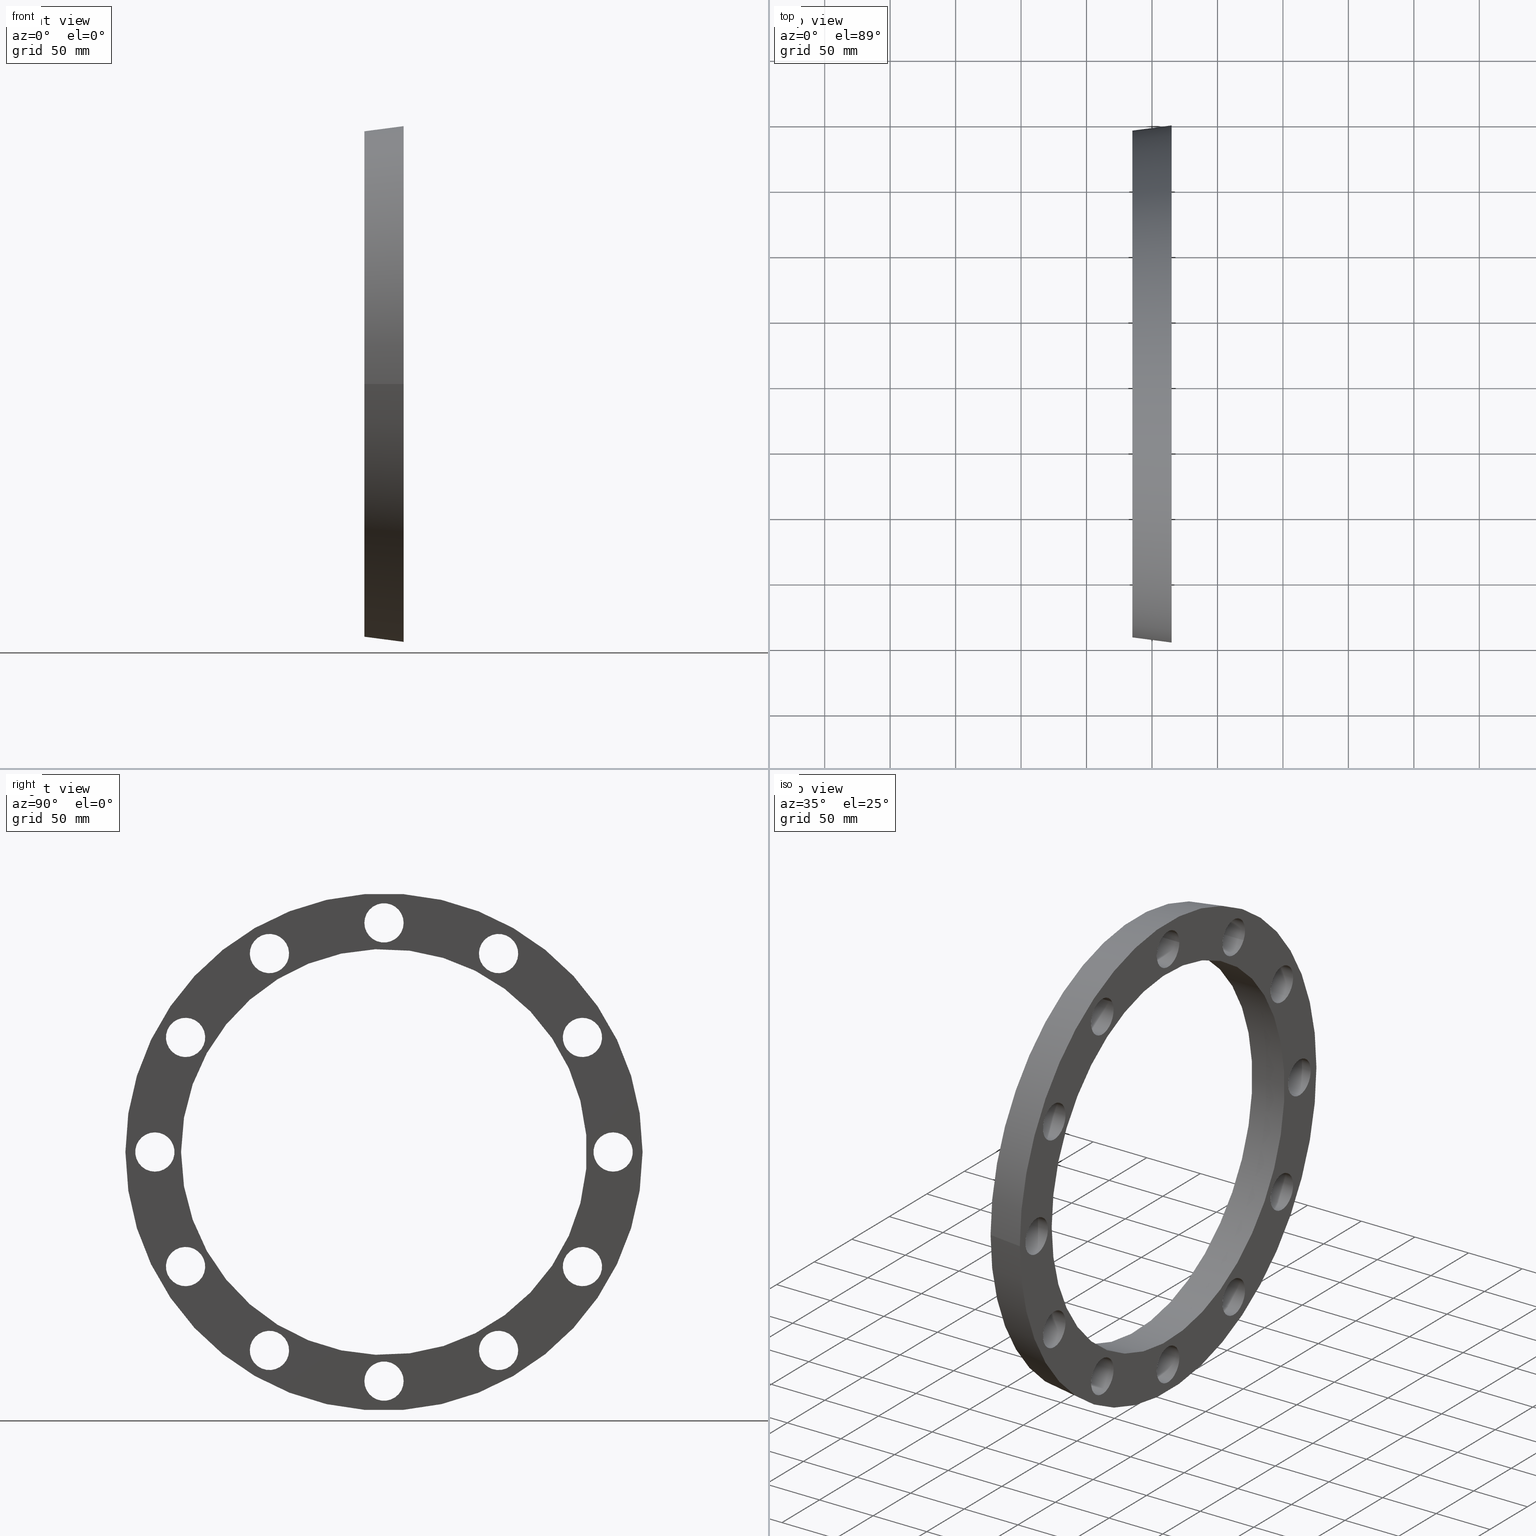
[diagram: canonical four-view strip — front | top / right | iso, engineering-drawing reading convention]
A machine part, canonical four-view strip (front | top / right | iso — engineering-drawing reading convention). The complete STEP part file that produces these views, byte-faithful:
ISO-10303-21;
HEADER;
/* Generated by software containing ST-Developer
 * from STEP Tools, Inc. (www.steptools.com) 
 */

FILE_DESCRIPTION(
/* description */ ('PLASSON BACKING FLANGE PVC 280'),
/* implementation_level */ '2;1');

FILE_NAME(
/* name */ 
'C:\\Dropbox\\KIMPROJECTS-Inventor\\99-16-3568-Processing\\PVC Catalog
 2017\\059000\\(_AS)059000280.ipt.stp',
/* time_stamp */ '2017-12-07T16:06:23+02:00',
/* author */ ('KIM'),
/* organization */ (''),
/* preprocessor_version */ 'ST-DEVELOPER v15.6',
/* originating_system */ 'Autodesk Inventor 2015',
/* authorisation */ '');

FILE_SCHEMA (('AUTOMOTIVE_DESIGN { 1 0 10303 214 3 1 1 }'));
ENDSEC;

DATA;
#10=MECHANICAL_DESIGN_GEOMETRIC_PRESENTATION_REPRESENTATION('',(#13),#511);
#11=SHAPE_REPRESENTATION_RELATIONSHIP('SRR','None',#520,#12);
#12=ADVANCED_BREP_SHAPE_REPRESENTATION($,(#14),#510);
#13=STYLED_ITEM('',(#529),#14);
#14=MANIFOLD_SOLID_BREP('Solid1',#299);
#15=CONICAL_SURFACE('',#340,195.525,7.50079799578686);
#16=PLANE('',#337);
#17=PLANE('',#342);
#18=FACE_BOUND('',#75,.T.);
#19=FACE_BOUND('',#77,.T.);
#20=FACE_BOUND('',#79,.T.);
#21=FACE_BOUND('',#81,.T.);
#22=FACE_BOUND('',#83,.T.);
#23=FACE_BOUND('',#85,.T.);
#24=FACE_BOUND('',#87,.T.);
#25=FACE_BOUND('',#89,.T.);
#26=FACE_BOUND('',#91,.T.);
#27=FACE_BOUND('',#93,.T.);
#28=FACE_BOUND('',#95,.T.);
#29=FACE_BOUND('',#97,.T.);
#30=FACE_BOUND('',#99,.T.);
#31=FACE_BOUND('',#100,.T.);
#32=FACE_BOUND('',#101,.T.);
#33=FACE_BOUND('',#102,.T.);
#34=FACE_BOUND('',#103,.T.);
#35=FACE_BOUND('',#104,.T.);
#36=FACE_BOUND('',#105,.T.);
#37=FACE_BOUND('',#106,.T.);
#38=FACE_BOUND('',#107,.T.);
#39=FACE_BOUND('',#108,.T.);
#40=FACE_BOUND('',#109,.T.);
#41=FACE_BOUND('',#110,.T.);
#42=FACE_BOUND('',#111,.T.);
#43=FACE_BOUND('',#113,.T.);
#44=FACE_BOUND('',#115,.T.);
#45=FACE_BOUND('',#116,.T.);
#46=FACE_BOUND('',#117,.T.);
#47=FACE_BOUND('',#118,.T.);
#48=FACE_BOUND('',#119,.T.);
#49=FACE_BOUND('',#120,.T.);
#50=FACE_BOUND('',#121,.T.);
#51=FACE_BOUND('',#122,.T.);
#52=FACE_BOUND('',#123,.T.);
#53=FACE_BOUND('',#124,.T.);
#54=FACE_BOUND('',#125,.T.);
#55=FACE_BOUND('',#126,.T.);
#56=FACE_BOUND('',#127,.T.);
#57=FACE_BOUND('',#129,.T.);
#58=FACE_OUTER_BOUND('',#74,.T.);
#59=FACE_OUTER_BOUND('',#76,.T.);
#60=FACE_OUTER_BOUND('',#78,.T.);
#61=FACE_OUTER_BOUND('',#80,.T.);
#62=FACE_OUTER_BOUND('',#82,.T.);
#63=FACE_OUTER_BOUND('',#84,.T.);
#64=FACE_OUTER_BOUND('',#86,.T.);
#65=FACE_OUTER_BOUND('',#88,.T.);
#66=FACE_OUTER_BOUND('',#90,.T.);
#67=FACE_OUTER_BOUND('',#92,.T.);
#68=FACE_OUTER_BOUND('',#94,.T.);
#69=FACE_OUTER_BOUND('',#96,.T.);
#70=FACE_OUTER_BOUND('',#98,.T.);
#71=FACE_OUTER_BOUND('',#112,.T.);
#72=FACE_OUTER_BOUND('',#114,.T.);
#73=FACE_OUTER_BOUND('',#128,.T.);
#74=EDGE_LOOP('',(#214));
#75=EDGE_LOOP('',(#215));
#76=EDGE_LOOP('',(#216));
#77=EDGE_LOOP('',(#217));
#78=EDGE_LOOP('',(#218));
#79=EDGE_LOOP('',(#219));
#80=EDGE_LOOP('',(#220));
#81=EDGE_LOOP('',(#221));
#82=EDGE_LOOP('',(#222));
#83=EDGE_LOOP('',(#223));
#84=EDGE_LOOP('',(#224));
#85=EDGE_LOOP('',(#225));
#86=EDGE_LOOP('',(#226));
#87=EDGE_LOOP('',(#227));
#88=EDGE_LOOP('',(#228));
#89=EDGE_LOOP('',(#229));
#90=EDGE_LOOP('',(#230));
#91=EDGE_LOOP('',(#231));
#92=EDGE_LOOP('',(#232));
#93=EDGE_LOOP('',(#233));
#94=EDGE_LOOP('',(#234));
#95=EDGE_LOOP('',(#235));
#96=EDGE_LOOP('',(#236));
#97=EDGE_LOOP('',(#237));
#98=EDGE_LOOP('',(#238));
#99=EDGE_LOOP('',(#239));
#100=EDGE_LOOP('',(#240));
#101=EDGE_LOOP('',(#241));
#102=EDGE_LOOP('',(#242));
#103=EDGE_LOOP('',(#243));
#104=EDGE_LOOP('',(#244));
#105=EDGE_LOOP('',(#245));
#106=EDGE_LOOP('',(#246));
#107=EDGE_LOOP('',(#247));
#108=EDGE_LOOP('',(#248));
#109=EDGE_LOOP('',(#249));
#110=EDGE_LOOP('',(#250));
#111=EDGE_LOOP('',(#251));
#112=EDGE_LOOP('',(#252));
#113=EDGE_LOOP('',(#253));
#114=EDGE_LOOP('',(#254));
#115=EDGE_LOOP('',(#255));
#116=EDGE_LOOP('',(#256));
#117=EDGE_LOOP('',(#257));
#118=EDGE_LOOP('',(#258));
#119=EDGE_LOOP('',(#259));
#120=EDGE_LOOP('',(#260));
#121=EDGE_LOOP('',(#261));
#122=EDGE_LOOP('',(#262));
#123=EDGE_LOOP('',(#263));
#124=EDGE_LOOP('',(#264));
#125=EDGE_LOOP('',(#265));
#126=EDGE_LOOP('',(#266));
#127=EDGE_LOOP('',(#267));
#128=EDGE_LOOP('',(#268));
#129=EDGE_LOOP('',(#269));
#130=CIRCLE('',#302,15.);
#131=CIRCLE('',#303,15.);
#132=CIRCLE('',#305,15.);
#133=CIRCLE('',#306,15.);
#134=CIRCLE('',#308,15.);
#135=CIRCLE('',#309,15.);
#136=CIRCLE('',#311,15.);
#137=CIRCLE('',#312,15.);
#138=CIRCLE('',#314,15.);
#139=CIRCLE('',#315,15.);
#140=CIRCLE('',#317,15.);
#141=CIRCLE('',#318,15.);
#142=CIRCLE('',#320,15.);
#143=CIRCLE('',#321,15.);
#144=CIRCLE('',#323,15.);
#145=CIRCLE('',#324,15.);
#146=CIRCLE('',#326,15.);
#147=CIRCLE('',#327,15.);
#148=CIRCLE('',#329,15.);
#149=CIRCLE('',#330,15.);
#150=CIRCLE('',#332,15.);
#151=CIRCLE('',#333,15.);
#152=CIRCLE('',#335,15.);
#153=CIRCLE('',#336,15.);
#154=CIRCLE('',#338,197.5);
#155=CIRCLE('',#339,155.);
#156=CIRCLE('',#341,193.55);
#157=CIRCLE('',#343,155.);
#158=VERTEX_POINT('',#437);
#159=VERTEX_POINT('',#439);
#160=VERTEX_POINT('',#442);
#161=VERTEX_POINT('',#444);
#162=VERTEX_POINT('',#447);
#163=VERTEX_POINT('',#449);
#164=VERTEX_POINT('',#452);
#165=VERTEX_POINT('',#454);
#166=VERTEX_POINT('',#457);
#167=VERTEX_POINT('',#459);
#168=VERTEX_POINT('',#462);
#169=VERTEX_POINT('',#464);
#170=VERTEX_POINT('',#467);
#171=VERTEX_POINT('',#469);
#172=VERTEX_POINT('',#472);
#173=VERTEX_POINT('',#474);
#174=VERTEX_POINT('',#477);
#175=VERTEX_POINT('',#479);
#176=VERTEX_POINT('',#482);
#177=VERTEX_POINT('',#484);
#178=VERTEX_POINT('',#487);
#179=VERTEX_POINT('',#489);
#180=VERTEX_POINT('',#492);
#181=VERTEX_POINT('',#494);
#182=VERTEX_POINT('',#497);
#183=VERTEX_POINT('',#499);
#184=VERTEX_POINT('',#502);
#185=VERTEX_POINT('',#505);
#186=EDGE_CURVE('',#158,#158,#130,.T.);
#187=EDGE_CURVE('',#159,#159,#131,.T.);
#188=EDGE_CURVE('',#160,#160,#132,.T.);
#189=EDGE_CURVE('',#161,#161,#133,.T.);
#190=EDGE_CURVE('',#162,#162,#134,.T.);
#191=EDGE_CURVE('',#163,#163,#135,.T.);
#192=EDGE_CURVE('',#164,#164,#136,.T.);
#193=EDGE_CURVE('',#165,#165,#137,.T.);
#194=EDGE_CURVE('',#166,#166,#138,.T.);
#195=EDGE_CURVE('',#167,#167,#139,.T.);
#196=EDGE_CURVE('',#168,#168,#140,.T.);
#197=EDGE_CURVE('',#169,#169,#141,.T.);
#198=EDGE_CURVE('',#170,#170,#142,.T.);
#199=EDGE_CURVE('',#171,#171,#143,.T.);
#200=EDGE_CURVE('',#172,#172,#144,.T.);
#201=EDGE_CURVE('',#173,#173,#145,.T.);
#202=EDGE_CURVE('',#174,#174,#146,.T.);
#203=EDGE_CURVE('',#175,#175,#147,.T.);
#204=EDGE_CURVE('',#176,#176,#148,.T.);
#205=EDGE_CURVE('',#177,#177,#149,.T.);
#206=EDGE_CURVE('',#178,#178,#150,.T.);
#207=EDGE_CURVE('',#179,#179,#151,.T.);
#208=EDGE_CURVE('',#180,#180,#152,.T.);
#209=EDGE_CURVE('',#181,#181,#153,.T.);
#210=EDGE_CURVE('',#182,#182,#154,.T.);
#211=EDGE_CURVE('',#183,#183,#155,.T.);
#212=EDGE_CURVE('',#184,#184,#156,.T.);
#213=EDGE_CURVE('',#185,#185,#157,.T.);
#214=ORIENTED_EDGE('',*,*,#186,.F.);
#215=ORIENTED_EDGE('',*,*,#187,.F.);
#216=ORIENTED_EDGE('',*,*,#188,.F.);
#217=ORIENTED_EDGE('',*,*,#189,.F.);
#218=ORIENTED_EDGE('',*,*,#190,.F.);
#219=ORIENTED_EDGE('',*,*,#191,.F.);
#220=ORIENTED_EDGE('',*,*,#192,.F.);
#221=ORIENTED_EDGE('',*,*,#193,.F.);
#222=ORIENTED_EDGE('',*,*,#194,.F.);
#223=ORIENTED_EDGE('',*,*,#195,.F.);
#224=ORIENTED_EDGE('',*,*,#196,.F.);
#225=ORIENTED_EDGE('',*,*,#197,.F.);
#226=ORIENTED_EDGE('',*,*,#198,.F.);
#227=ORIENTED_EDGE('',*,*,#199,.F.);
#228=ORIENTED_EDGE('',*,*,#200,.F.);
#229=ORIENTED_EDGE('',*,*,#201,.F.);
#230=ORIENTED_EDGE('',*,*,#202,.F.);
#231=ORIENTED_EDGE('',*,*,#203,.F.);
#232=ORIENTED_EDGE('',*,*,#204,.F.);
#233=ORIENTED_EDGE('',*,*,#205,.F.);
#234=ORIENTED_EDGE('',*,*,#206,.F.);
#235=ORIENTED_EDGE('',*,*,#207,.F.);
#236=ORIENTED_EDGE('',*,*,#208,.F.);
#237=ORIENTED_EDGE('',*,*,#209,.F.);
#238=ORIENTED_EDGE('',*,*,#210,.F.);
#239=ORIENTED_EDGE('',*,*,#187,.T.);
#240=ORIENTED_EDGE('',*,*,#189,.T.);
#241=ORIENTED_EDGE('',*,*,#191,.T.);
#242=ORIENTED_EDGE('',*,*,#193,.T.);
#243=ORIENTED_EDGE('',*,*,#195,.T.);
#244=ORIENTED_EDGE('',*,*,#197,.T.);
#245=ORIENTED_EDGE('',*,*,#199,.T.);
#246=ORIENTED_EDGE('',*,*,#201,.T.);
#247=ORIENTED_EDGE('',*,*,#203,.T.);
#248=ORIENTED_EDGE('',*,*,#205,.T.);
#249=ORIENTED_EDGE('',*,*,#207,.T.);
#250=ORIENTED_EDGE('',*,*,#209,.T.);
#251=ORIENTED_EDGE('',*,*,#211,.T.);
#252=ORIENTED_EDGE('',*,*,#212,.F.);
#253=ORIENTED_EDGE('',*,*,#210,.T.);
#254=ORIENTED_EDGE('',*,*,#212,.T.);
#255=ORIENTED_EDGE('',*,*,#186,.T.);
#256=ORIENTED_EDGE('',*,*,#188,.T.);
#257=ORIENTED_EDGE('',*,*,#190,.T.);
#258=ORIENTED_EDGE('',*,*,#192,.T.);
#259=ORIENTED_EDGE('',*,*,#194,.T.);
#260=ORIENTED_EDGE('',*,*,#196,.T.);
#261=ORIENTED_EDGE('',*,*,#198,.T.);
#262=ORIENTED_EDGE('',*,*,#200,.T.);
#263=ORIENTED_EDGE('',*,*,#202,.T.);
#264=ORIENTED_EDGE('',*,*,#204,.T.);
#265=ORIENTED_EDGE('',*,*,#206,.T.);
#266=ORIENTED_EDGE('',*,*,#208,.T.);
#267=ORIENTED_EDGE('',*,*,#213,.F.);
#268=ORIENTED_EDGE('',*,*,#211,.F.);
#269=ORIENTED_EDGE('',*,*,#213,.T.);
#270=CYLINDRICAL_SURFACE('',#301,15.);
#271=CYLINDRICAL_SURFACE('',#304,15.);
#272=CYLINDRICAL_SURFACE('',#307,15.);
#273=CYLINDRICAL_SURFACE('',#310,15.);
#274=CYLINDRICAL_SURFACE('',#313,15.);
#275=CYLINDRICAL_SURFACE('',#316,15.);
#276=CYLINDRICAL_SURFACE('',#319,15.);
#277=CYLINDRICAL_SURFACE('',#322,15.);
#278=CYLINDRICAL_SURFACE('',#325,15.);
#279=CYLINDRICAL_SURFACE('',#328,15.);
#280=CYLINDRICAL_SURFACE('',#331,15.);
#281=CYLINDRICAL_SURFACE('',#334,15.);
#282=CYLINDRICAL_SURFACE('',#344,155.);
#283=ADVANCED_FACE('',(#58,#18),#270,.F.);
#284=ADVANCED_FACE('',(#59,#19),#271,.F.);
#285=ADVANCED_FACE('',(#60,#20),#272,.F.);
#286=ADVANCED_FACE('',(#61,#21),#273,.F.);
#287=ADVANCED_FACE('',(#62,#22),#274,.F.);
#288=ADVANCED_FACE('',(#63,#23),#275,.F.);
#289=ADVANCED_FACE('',(#64,#24),#276,.F.);
#290=ADVANCED_FACE('',(#65,#25),#277,.F.);
#291=ADVANCED_FACE('',(#66,#26),#278,.F.);
#292=ADVANCED_FACE('',(#67,#27),#279,.F.);
#293=ADVANCED_FACE('',(#68,#28),#280,.F.);
#294=ADVANCED_FACE('',(#69,#29),#281,.F.);
#295=ADVANCED_FACE('',(#70,#30,#31,#32,#33,#34,#35,#36,#37,#38,#39,#40,
#41,#42),#16,.T.);
#296=ADVANCED_FACE('',(#71,#43),#15,.T.);
#297=ADVANCED_FACE('',(#72,#44,#45,#46,#47,#48,#49,#50,#51,#52,#53,#54,
#55,#56),#17,.T.);
#298=ADVANCED_FACE('',(#73,#57),#282,.F.);
#299=CLOSED_SHELL('',(#283,#284,#285,#286,#287,#288,#289,#290,#291,#292,
#293,#294,#295,#296,#297,#298));
#300=AXIS2_PLACEMENT_3D('placement',#435,#345,#346);
#301=AXIS2_PLACEMENT_3D('',#436,#347,#348);
#302=AXIS2_PLACEMENT_3D('',#438,#349,#350);
#303=AXIS2_PLACEMENT_3D('',#440,#351,#352);
#304=AXIS2_PLACEMENT_3D('',#441,#353,#354);
#305=AXIS2_PLACEMENT_3D('',#443,#355,#356);
#306=AXIS2_PLACEMENT_3D('',#445,#357,#358);
#307=AXIS2_PLACEMENT_3D('',#446,#359,#360);
#308=AXIS2_PLACEMENT_3D('',#448,#361,#362);
#309=AXIS2_PLACEMENT_3D('',#450,#363,#364);
#310=AXIS2_PLACEMENT_3D('',#451,#365,#366);
#311=AXIS2_PLACEMENT_3D('',#453,#367,#368);
#312=AXIS2_PLACEMENT_3D('',#455,#369,#370);
#313=AXIS2_PLACEMENT_3D('',#456,#371,#372);
#314=AXIS2_PLACEMENT_3D('',#458,#373,#374);
#315=AXIS2_PLACEMENT_3D('',#460,#375,#376);
#316=AXIS2_PLACEMENT_3D('',#461,#377,#378);
#317=AXIS2_PLACEMENT_3D('',#463,#379,#380);
#318=AXIS2_PLACEMENT_3D('',#465,#381,#382);
#319=AXIS2_PLACEMENT_3D('',#466,#383,#384);
#320=AXIS2_PLACEMENT_3D('',#468,#385,#386);
#321=AXIS2_PLACEMENT_3D('',#470,#387,#388);
#322=AXIS2_PLACEMENT_3D('',#471,#389,#390);
#323=AXIS2_PLACEMENT_3D('',#473,#391,#392);
#324=AXIS2_PLACEMENT_3D('',#475,#393,#394);
#325=AXIS2_PLACEMENT_3D('',#476,#395,#396);
#326=AXIS2_PLACEMENT_3D('',#478,#397,#398);
#327=AXIS2_PLACEMENT_3D('',#480,#399,#400);
#328=AXIS2_PLACEMENT_3D('',#481,#401,#402);
#329=AXIS2_PLACEMENT_3D('',#483,#403,#404);
#330=AXIS2_PLACEMENT_3D('',#485,#405,#406);
#331=AXIS2_PLACEMENT_3D('',#486,#407,#408);
#332=AXIS2_PLACEMENT_3D('',#488,#409,#410);
#333=AXIS2_PLACEMENT_3D('',#490,#411,#412);
#334=AXIS2_PLACEMENT_3D('',#491,#413,#414);
#335=AXIS2_PLACEMENT_3D('',#493,#415,#416);
#336=AXIS2_PLACEMENT_3D('',#495,#417,#418);
#337=AXIS2_PLACEMENT_3D('',#496,#419,#420);
#338=AXIS2_PLACEMENT_3D('',#498,#421,#422);
#339=AXIS2_PLACEMENT_3D('',#500,#423,#424);
#340=AXIS2_PLACEMENT_3D('',#501,#425,#426);
#341=AXIS2_PLACEMENT_3D('',#503,#427,#428);
#342=AXIS2_PLACEMENT_3D('',#504,#429,#430);
#343=AXIS2_PLACEMENT_3D('',#506,#431,#432);
#344=AXIS2_PLACEMENT_3D('',#507,#433,#434);
#345=DIRECTION('axis',(0.,0.,1.));
#346=DIRECTION('refdir',(1.,0.,0.));
#347=DIRECTION('center_axis',(-1.,0.,0.));
#348=DIRECTION('ref_axis',(0.,-0.5,0.866025403784438));
#349=DIRECTION('center_axis',(1.,0.,0.));
#350=DIRECTION('ref_axis',(0.,-0.5,0.866025403784438));
#351=DIRECTION('center_axis',(-1.,0.,0.));
#352=DIRECTION('ref_axis',(0.,-0.5,0.866025403784438));
#353=DIRECTION('center_axis',(-1.,0.,0.));
#354=DIRECTION('ref_axis',(0.,-0.866025403784439,0.499999999999999));
#355=DIRECTION('center_axis',(1.,0.,0.));
#356=DIRECTION('ref_axis',(0.,-0.866025403784439,0.499999999999999));
#357=DIRECTION('center_axis',(-1.,0.,0.));
#358=DIRECTION('ref_axis',(0.,-0.866025403784439,0.499999999999999));
#359=DIRECTION('center_axis',(-1.,0.,0.));
#360=DIRECTION('ref_axis',(0.,-1.,-2.22044604925031E-16));
#361=DIRECTION('center_axis',(1.,0.,0.));
#362=DIRECTION('ref_axis',(0.,-1.,-2.22044604925031E-16));
#363=DIRECTION('center_axis',(-1.,0.,0.));
#364=DIRECTION('ref_axis',(0.,-1.,-2.22044604925031E-16));
#365=DIRECTION('center_axis',(-1.,0.,0.));
#366=DIRECTION('ref_axis',(0.,-0.866025403784438,-0.5));
#367=DIRECTION('center_axis',(1.,0.,0.));
#368=DIRECTION('ref_axis',(0.,-0.866025403784438,-0.5));
#369=DIRECTION('center_axis',(-1.,0.,0.));
#370=DIRECTION('ref_axis',(0.,-0.866025403784438,-0.5));
#371=DIRECTION('center_axis',(-1.,0.,0.));
#372=DIRECTION('ref_axis',(0.,-0.5,-0.866025403784439));
#373=DIRECTION('center_axis',(1.,0.,0.));
#374=DIRECTION('ref_axis',(0.,-0.5,-0.866025403784439));
#375=DIRECTION('center_axis',(-1.,0.,0.));
#376=DIRECTION('ref_axis',(0.,-0.5,-0.866025403784439));
#377=DIRECTION('center_axis',(-1.,0.,0.));
#378=DIRECTION('ref_axis',(0.,7.40148683083438E-17,-1.));
#379=DIRECTION('center_axis',(1.,0.,0.));
#380=DIRECTION('ref_axis',(0.,7.40148683083438E-17,-1.));
#381=DIRECTION('center_axis',(-1.,0.,0.));
#382=DIRECTION('ref_axis',(0.,7.40148683083438E-17,-1.));
#383=DIRECTION('center_axis',(-1.,0.,0.));
#384=DIRECTION('ref_axis',(0.,0.5,-0.866025403784438));
#385=DIRECTION('center_axis',(1.,0.,0.));
#386=DIRECTION('ref_axis',(0.,0.5,-0.866025403784438));
#387=DIRECTION('center_axis',(-1.,0.,0.));
#388=DIRECTION('ref_axis',(0.,0.5,-0.866025403784438));
#389=DIRECTION('center_axis',(-1.,0.,0.));
#390=DIRECTION('ref_axis',(0.,0.866025403784439,-0.5));
#391=DIRECTION('center_axis',(1.,0.,0.));
#392=DIRECTION('ref_axis',(0.,0.866025403784439,-0.5));
#393=DIRECTION('center_axis',(-1.,0.,0.));
#394=DIRECTION('ref_axis',(0.,0.866025403784439,-0.5));
#395=DIRECTION('center_axis',(-1.,0.,0.));
#396=DIRECTION('ref_axis',(0.,1.,7.40148683083438E-17));
#397=DIRECTION('center_axis',(1.,0.,0.));
#398=DIRECTION('ref_axis',(0.,1.,7.40148683083438E-17));
#399=DIRECTION('center_axis',(-1.,0.,0.));
#400=DIRECTION('ref_axis',(0.,1.,7.40148683083438E-17));
#401=DIRECTION('center_axis',(-1.,0.,0.));
#402=DIRECTION('ref_axis',(0.,0.866025403784439,0.5));
#403=DIRECTION('center_axis',(1.,0.,0.));
#404=DIRECTION('ref_axis',(0.,0.866025403784439,0.5));
#405=DIRECTION('center_axis',(-1.,0.,0.));
#406=DIRECTION('ref_axis',(0.,0.866025403784439,0.5));
#407=DIRECTION('center_axis',(-1.,0.,0.));
#408=DIRECTION('ref_axis',(0.,0.5,0.866025403784439));
#409=DIRECTION('center_axis',(1.,0.,0.));
#410=DIRECTION('ref_axis',(0.,0.5,0.866025403784439));
#411=DIRECTION('center_axis',(-1.,0.,0.));
#412=DIRECTION('ref_axis',(0.,0.5,0.866025403784439));
#413=DIRECTION('center_axis',(-1.,0.,0.));
#414=DIRECTION('ref_axis',(0.,0.,1.));
#415=DIRECTION('center_axis',(1.,0.,0.));
#416=DIRECTION('ref_axis',(0.,0.,1.));
#417=DIRECTION('center_axis',(-1.,0.,0.));
#418=DIRECTION('ref_axis',(0.,0.,1.));
#419=DIRECTION('center_axis',(1.,0.,0.));
#420=DIRECTION('ref_axis',(0.,0.,-1.));
#421=DIRECTION('center_axis',(-1.,0.,0.));
#422=DIRECTION('ref_axis',(0.,0.,1.));
#423=DIRECTION('center_axis',(-1.,0.,0.));
#424=DIRECTION('ref_axis',(0.,0.,1.));
#425=DIRECTION('center_axis',(1.,0.,0.));
#426=DIRECTION('ref_axis',(0.,-1.,0.));
#427=DIRECTION('center_axis',(-1.,0.,0.));
#428=DIRECTION('ref_axis',(0.,0.,1.));
#429=DIRECTION('center_axis',(-1.,0.,0.));
#430=DIRECTION('ref_axis',(0.,0.,1.));
#431=DIRECTION('center_axis',(-1.,0.,0.));
#432=DIRECTION('ref_axis',(0.,0.,1.));
#433=DIRECTION('center_axis',(-1.,0.,0.));
#434=DIRECTION('ref_axis',(0.,-1.,0.));
#435=CARTESIAN_POINT('',(0.,0.,0.));
#436=CARTESIAN_POINT('Origin',(15.,151.554445662277,87.5000000000001));
#437=CARTESIAN_POINT('',(-15.,159.054445662277,74.5096189432335));
#438=CARTESIAN_POINT('Origin',(-15.,151.554445662277,87.5000000000001));
#439=CARTESIAN_POINT('',(15.,159.054445662277,74.5096189432335));
#440=CARTESIAN_POINT('Origin',(15.,151.554445662277,87.5000000000001));
#441=CARTESIAN_POINT('Origin',(15.,87.4999999999999,151.554445662277));
#442=CARTESIAN_POINT('',(-15.,100.490381056766,144.054445662277));
#443=CARTESIAN_POINT('Origin',(-15.,87.4999999999999,151.554445662277));
#444=CARTESIAN_POINT('',(15.,100.490381056766,144.054445662277));
#445=CARTESIAN_POINT('Origin',(15.,87.4999999999999,151.554445662277));
#446=CARTESIAN_POINT('Origin',(15.,-3.5527136788005E-14,175.));
#447=CARTESIAN_POINT('',(-15.,15.,175.));
#448=CARTESIAN_POINT('Origin',(-15.,-3.5527136788005E-14,175.));
#449=CARTESIAN_POINT('',(15.,15.,175.));
#450=CARTESIAN_POINT('Origin',(15.,-3.5527136788005E-14,175.));
#451=CARTESIAN_POINT('Origin',(15.,-87.5000000000001,151.554445662277));
#452=CARTESIAN_POINT('',(-15.,-74.5096189432335,159.054445662277));
#453=CARTESIAN_POINT('Origin',(-15.,-87.5000000000001,151.554445662277));
#454=CARTESIAN_POINT('',(15.,-74.5096189432335,159.054445662277));
#455=CARTESIAN_POINT('Origin',(15.,-87.5000000000001,151.554445662277));
#456=CARTESIAN_POINT('Origin',(15.,-151.554445662277,87.4999999999999));
#457=CARTESIAN_POINT('',(-15.,-144.054445662277,100.490381056767));
#458=CARTESIAN_POINT('Origin',(-15.,-151.554445662277,87.4999999999999));
#459=CARTESIAN_POINT('',(15.,-144.054445662277,100.490381056767));
#460=CARTESIAN_POINT('Origin',(15.,-151.554445662277,87.4999999999999));
#461=CARTESIAN_POINT('Origin',(15.,-175.,-1.77635683940025E-14));
#462=CARTESIAN_POINT('',(-15.,-175.,15.));
#463=CARTESIAN_POINT('Origin',(-15.,-175.,-1.77635683940025E-14));
#464=CARTESIAN_POINT('',(15.,-175.,15.));
#465=CARTESIAN_POINT('Origin',(15.,-175.,-1.77635683940025E-14));
#466=CARTESIAN_POINT('Origin',(15.,-151.554445662277,-87.5000000000001));
#467=CARTESIAN_POINT('',(-15.,-159.054445662277,-74.5096189432335));
#468=CARTESIAN_POINT('Origin',(-15.,-151.554445662277,-87.5000000000001));
#469=CARTESIAN_POINT('',(15.,-159.054445662277,-74.5096189432335));
#470=CARTESIAN_POINT('Origin',(15.,-151.554445662277,-87.5000000000001));
#471=CARTESIAN_POINT('Origin',(15.,-87.5,-151.554445662277));
#472=CARTESIAN_POINT('',(-15.,-100.490381056767,-144.054445662277));
#473=CARTESIAN_POINT('Origin',(-15.,-87.5,-151.554445662277));
#474=CARTESIAN_POINT('',(15.,-100.490381056767,-144.054445662277));
#475=CARTESIAN_POINT('Origin',(15.,-87.5,-151.554445662277));
#476=CARTESIAN_POINT('Origin',(15.,8.88178419700125E-15,-175.));
#477=CARTESIAN_POINT('',(-15.,-15.,-175.));
#478=CARTESIAN_POINT('Origin',(-15.,8.88178419700125E-15,-175.));
#479=CARTESIAN_POINT('',(15.,-15.,-175.));
#480=CARTESIAN_POINT('Origin',(15.,8.88178419700125E-15,-175.));
#481=CARTESIAN_POINT('Origin',(15.,87.5,-151.554445662277));
#482=CARTESIAN_POINT('',(-15.,74.5096189432334,-159.054445662277));
#483=CARTESIAN_POINT('Origin',(-15.,87.5,-151.554445662277));
#484=CARTESIAN_POINT('',(15.,74.5096189432334,-159.054445662277));
#485=CARTESIAN_POINT('Origin',(15.,87.5,-151.554445662277));
#486=CARTESIAN_POINT('Origin',(15.,151.554445662277,-87.5));
#487=CARTESIAN_POINT('',(-15.,144.054445662277,-100.490381056767));
#488=CARTESIAN_POINT('Origin',(-15.,151.554445662277,-87.5));
#489=CARTESIAN_POINT('',(15.,144.054445662277,-100.490381056767));
#490=CARTESIAN_POINT('Origin',(15.,151.554445662277,-87.5));
#491=CARTESIAN_POINT('Origin',(15.,175.,0.));
#492=CARTESIAN_POINT('',(-15.,175.,-15.));
#493=CARTESIAN_POINT('Origin',(-15.,175.,0.));
#494=CARTESIAN_POINT('',(15.,175.,-15.));
#495=CARTESIAN_POINT('Origin',(15.,175.,0.));
#496=CARTESIAN_POINT('Origin',(15.,-197.5,0.));
#497=CARTESIAN_POINT('',(15.,-197.5,0.));
#498=CARTESIAN_POINT('Origin',(15.,0.,0.));
#499=CARTESIAN_POINT('',(15.,-155.,0.));
#500=CARTESIAN_POINT('Origin',(15.,0.,0.));
#501=CARTESIAN_POINT('Origin',(1.99840144432528E-14,0.,0.));
#502=CARTESIAN_POINT('',(-15.,-193.55,0.));
#503=CARTESIAN_POINT('Origin',(-15.,0.,0.));
#504=CARTESIAN_POINT('Origin',(-15.,-155.,0.));
#505=CARTESIAN_POINT('',(-15.,-155.,0.));
#506=CARTESIAN_POINT('Origin',(-15.,0.,0.));
#507=CARTESIAN_POINT('Origin',(0.,0.,0.));
#508=UNCERTAINTY_MEASURE_WITH_UNIT(LENGTH_MEASURE(0.01),#512,
'DISTANCE_ACCURACY_VALUE',
'Maximum model space distance between geometric entities at asserted c
onnectivities');
#509=UNCERTAINTY_MEASURE_WITH_UNIT(LENGTH_MEASURE(1.E-6),#512,
'DISTANCE_ACCURACY_VALUE',
'Maximum model space distance between geometric entities at asserted c
onnectivities');
#510=(
GEOMETRIC_REPRESENTATION_CONTEXT(3)
GLOBAL_UNCERTAINTY_ASSIGNED_CONTEXT((#508))
GLOBAL_UNIT_ASSIGNED_CONTEXT((#512,#515,#513))
REPRESENTATION_CONTEXT('','3D')
);
#511=(
GEOMETRIC_REPRESENTATION_CONTEXT(3)
GLOBAL_UNCERTAINTY_ASSIGNED_CONTEXT((#509))
GLOBAL_UNIT_ASSIGNED_CONTEXT((#512,#515,#513))
REPRESENTATION_CONTEXT('','3D')
);
#512=(
LENGTH_UNIT()
NAMED_UNIT(*)
SI_UNIT(.MILLI.,.METRE.)
);
#513=(
NAMED_UNIT(*)
SI_UNIT($,.STERADIAN.)
SOLID_ANGLE_UNIT()
);
#514=DIMENSIONAL_EXPONENTS(0.,0.,0.,0.,0.,0.,0.);
#515=(
CONVERSION_BASED_UNIT('degree',#517)
NAMED_UNIT(#514)
PLANE_ANGLE_UNIT()
);
#516=(
NAMED_UNIT(*)
PLANE_ANGLE_UNIT()
SI_UNIT($,.RADIAN.)
);
#517=PLANE_ANGLE_MEASURE_WITH_UNIT(PLANE_ANGLE_MEASURE(0.01745329252),#516);
#518=SHAPE_DEFINITION_REPRESENTATION(#519,#520);
#519=PRODUCT_DEFINITION_SHAPE('',$,#522);
#520=SHAPE_REPRESENTATION('',(#300),#510);
#521=PRODUCT_DEFINITION_CONTEXT('part definition',#526,'design');
#522=PRODUCT_DEFINITION('(_AS)059000280','(_AS)059000280',#523,#521);
#523=PRODUCT_DEFINITION_FORMATION('',$,#528);
#524=PRODUCT_RELATED_PRODUCT_CATEGORY('(_AS)059000280','(_AS)059000280',
(#528));
#525=APPLICATION_PROTOCOL_DEFINITION('international standard',
'automotive_design',2009,#526);
#526=APPLICATION_CONTEXT(
'Core Data for Automotive Mechanical Design Process');
#527=PRODUCT_CONTEXT('part definition',#526,'mechanical');
#528=PRODUCT('(_AS)059000280','(_AS)059000280',$,(#527));
#529=PRESENTATION_STYLE_ASSIGNMENT((#530));
#530=SURFACE_STYLE_USAGE(.BOTH.,#531);
#531=SURFACE_SIDE_STYLE($,(#532));
#532=SURFACE_STYLE_FILL_AREA(#533);
#533=FILL_AREA_STYLE($,(#534));
#534=FILL_AREA_STYLE_COLOUR($,#535);
#535=COLOUR_RGB('',0.749019607843137,0.749019607843137,0.749019607843137);
ENDSEC;
END-ISO-10303-21;
